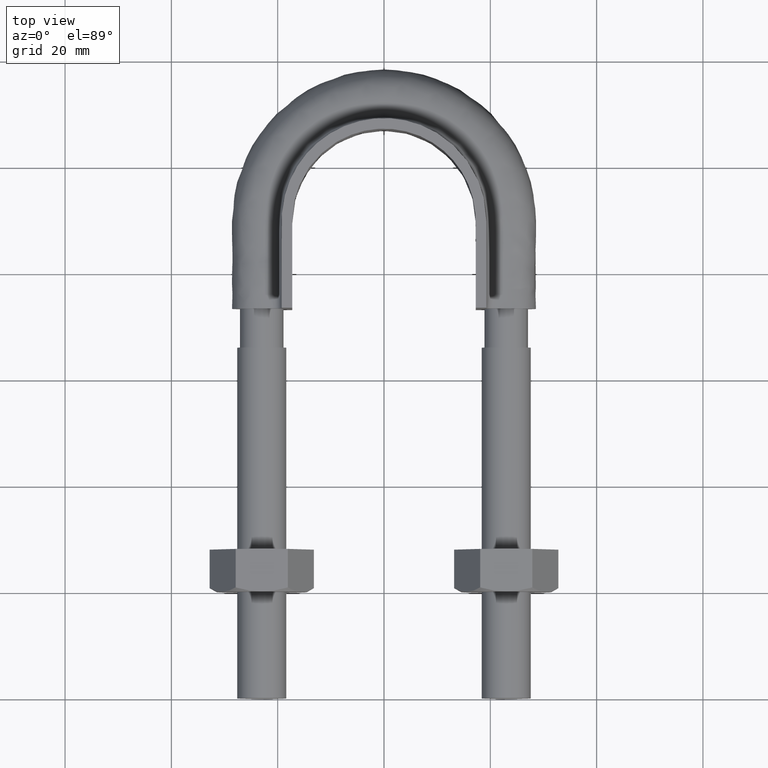
[diagram: clean part render]
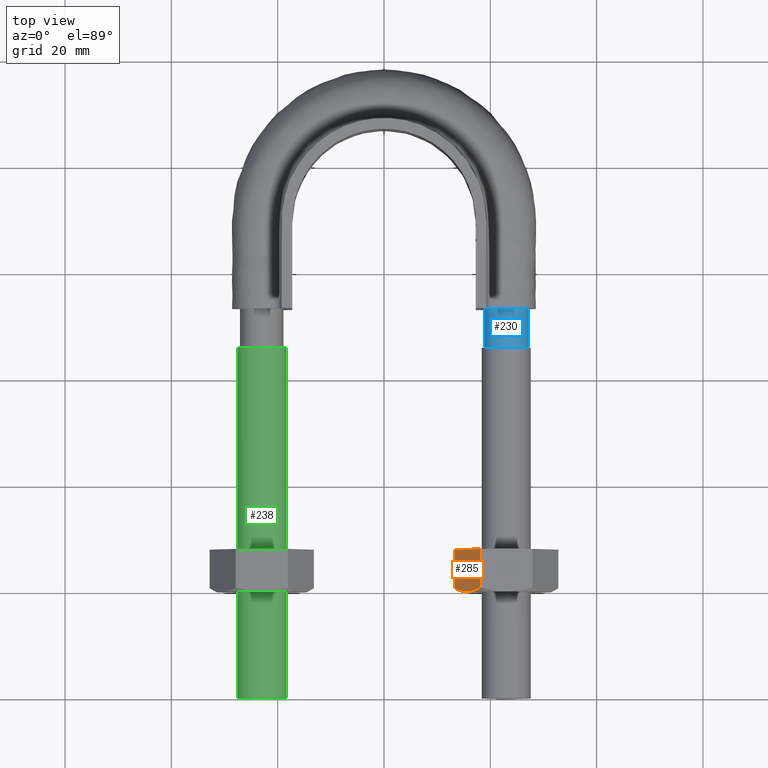
[diagram: same view with three faces highlighted in distinct colors, each labeled with its STEP entity id]
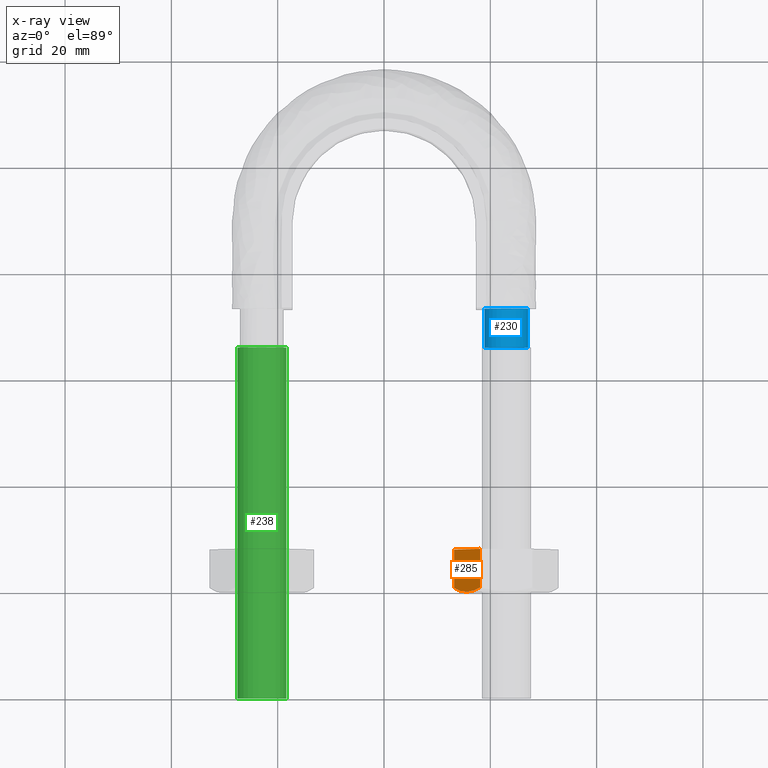
[diagram: x-ray of the same camera — body ghosted, the three highlighted faces saturated]
A machine part, top view with three faces highlighted in distinct colors.
The next image is the same camera in x-ray (body ghosted, the three faces saturated) — at least one of them is partly hidden behind the body in this view.
Their STEP definitions:

[orange] entity #285 — the highlighted planar face has unit normal (0.866, -0, -0.5).
#285 = ADVANCED_FACE( '', ( #444 ), #445, .F. );
#444 = FACE_OUTER_BOUND( '', #1441, .T. );
#445 = PLANE( '', #1442 );
#1441 = EDGE_LOOP( '', ( #1933, #1934, #1935, #1936, #1937 ) );
#1442 = AXIS2_PLACEMENT_3D( '', #1938, #1939, #1940 );
#1933 = ORIENTED_EDGE( '', *, *, #2112, .F. );
#1934 = ORIENTED_EDGE( '', *, *, #2144, .F. );
#1935 = ORIENTED_EDGE( '', *, *, #2121, .F. );
#1936 = ORIENTED_EDGE( '', *, *, #2135, .F. );
#1937 = ORIENTED_EDGE( '', *, *, #2118, .F. );
#1938 = CARTESIAN_POINT( '', ( 13.1850454237764, 28.0000000000000, 9.03086199571801E-015 ) );
#1939 = DIRECTION( '', ( 0.866025403784439, -5.90322481814055E-017, -0.500000000000000 ) );
#1940 = DIRECTION( '', ( 0.000000000000000, -1.00000000000000, 1.18064496362811E-016 ) );
#2112 = EDGE_CURVE( '', #2335, #2337, #2338, .T. );
#2118 = EDGE_CURVE( '', #2337, #2347, #2348, .T. );
#2121 = EDGE_CURVE( '', #2350, #2353, #2354, .F. );
#2135 = EDGE_CURVE( '', #2347, #2350, #2378, .T. );
#2144 = EDGE_CURVE( '', #2353, #2335, #2390, .T. );
#2335 = VERTEX_POINT( '', #2873 );
#2337 = VERTEX_POINT( '', #2875 );
#2338 = B_SPLINE_CURVE_WITH_KNOTS( '', 3, ( #2876, #2877, #2878, #2879, #2880, #2881 ), .UNSPECIFIED., .F., .F., ( 4, 2, 4 ), ( 1.73472347597681E-018, 0.00246745482903607, 0.00493490965807215 ), .UNSPECIFIED. );
#2347 = VERTEX_POINT( '', #2898 );
#2348 = LINE( '', #2899, #2900 );
#2350 = VERTEX_POINT( '', #2902 );
#2353 = VERTEX_POINT( '', #2905 );
#2354 = LINE( '', #2906, #2907 );
#2378 = LINE( '', #2947, #2948 );
#2390 = B_SPLINE_CURVE_WITH_KNOTS( '', 3, ( #2972, #2973, #2974, #2975, #2976, #2977 ), .UNSPECIFIED., .F., .F., ( 4, 2, 4 ), ( 1.73472347597681E-018, 0.00246745482903607, 0.00493490965807214 ), .UNSPECIFIED. );
#2873 = CARTESIAN_POINT( '', ( 15.6387840678323, 20.0000000000000, 4.25000000000001 ) );
#2875 = CARTESIAN_POINT( '', ( 13.2000343881808, 20.7505553499465, 0.0259616479013504 ) );
#2876 = CARTESIAN_POINT( '', ( 15.6387840678323, 20.0000000000000, 4.25000000000001 ) );
#2877 = CARTESIAN_POINT( '', ( 15.2227010927369, 20.0000000000000, 3.52932314697042 ) );
#2878 = CARTESIAN_POINT( '', ( 14.8121309439895, 20.0716504305290, 2.81819478926869 ) );
#2879 = CARTESIAN_POINT( '', ( 14.0000624800009, 20.3328582843706, 1.41165095041601 ) );
#2880 = CARTESIAN_POINT( '', ( 13.5984982144937, 20.5215585493656, 0.716121240053488 ) );
#2881 = CARTESIAN_POINT( '', ( 13.2000343881809, 20.7505553499465, 0.0259616479013800 ) );
#2898 = CARTESIAN_POINT( '', ( 13.2000343881808, 28.0000000000000, 0.0259616479013250 ) );
#2899 = CARTESIAN_POINT( '', ( 13.2000343881808, 28.0000000000000, 0.0259616479013234 ) );
#2900 = VECTOR( '', #3172, 1000.00000000000 );
#2902 = CARTESIAN_POINT( '', ( 18.0775337474838, 28.0000000000000, 8.47403835209866 ) );
#2905 = CARTESIAN_POINT( '', ( 18.0775337474838, 20.7505553499465, 8.47403835209865 ) );
#2906 = CARTESIAN_POINT( '', ( 18.0775337474838, 28.0000000000000, 8.47403835209866 ) );
#2907 = VECTOR( '', #3179, 1000.00000000000 );
#2947 = CARTESIAN_POINT( '', ( 18.0887840678323, 28.0000000000000, 8.49352447854374 ) );
#2948 = VECTOR( '', #3201, 1000.00000000000 );
#2972 = CARTESIAN_POINT( '', ( 18.0775337474838, 20.7505553499465, 8.47403835209865 ) );
#2973 = CARTESIAN_POINT( '', ( 17.6790699211709, 20.5215585493657, 7.78387875994654 ) );
#2974 = CARTESIAN_POINT( '', ( 17.2775056556637, 20.3328582843706, 7.08834904958400 ) );
#2975 = CARTESIAN_POINT( '', ( 16.4654371916751, 20.0716504305290, 5.68180521073132 ) );
#2976 = CARTESIAN_POINT( '', ( 16.0548670429277, 20.0000000000000, 4.97067685302959 ) );
#2977 = CARTESIAN_POINT( '', ( 15.6387840678323, 20.0000000000000, 4.25000000000000 ) );
#3172 = DIRECTION( '', ( 2.44921270764476E-016, 1.00000000000000, 3.06151588455594E-016 ) );
#3179 = DIRECTION( '', ( 2.44921270764476E-016, 1.00000000000000, 3.06151588455594E-016 ) );
#3201 = DIRECTION( '', ( 0.500000000000000, -3.87595688393741E-016, 0.866025403784439 ) );

[blue] entity #230 — the highlighted cylindrical surface (bore or boss wall) has radius 4.1 mm, axis along (0, 1, 0).
#230 = ADVANCED_FACE( '', ( #323, #324 ), #325, .T. );
#323 = FACE_OUTER_BOUND( '', #1320, .T. );
#324 = FACE_OUTER_BOUND( '', #1321, .T. );
#325 = CYLINDRICAL_SURFACE( '', #1322, 4.10000000000000 );
#1320 = EDGE_LOOP( '', ( #1558, #1559, #1560, #1561, #1562, #1563, #1564 ) );
#1321 = EDGE_LOOP( '', ( #1565 ) );
#1322 = AXIS2_PLACEMENT_3D( '', #1566, #1567, #1568 );
#1558 = ORIENTED_EDGE( '', *, *, #2039, .T. );
#1559 = ORIENTED_EDGE( '', *, *, #2040, .T. );
#1560 = ORIENTED_EDGE( '', *, *, #2041, .T. );
#1561 = ORIENTED_EDGE( '', *, *, #2042, .T. );
#1562 = ORIENTED_EDGE( '', *, *, #2043, .T. );
#1563 = ORIENTED_EDGE( '', *, *, #2044, .T. );
#1564 = ORIENTED_EDGE( '', *, *, #2045, .T. );
#1565 = ORIENTED_EDGE( '', *, *, #2046, .T. );
#1566 = CARTESIAN_POINT( '', ( 23.0000000000000, 73.3000000000000, 9.99584936307515E-015 ) );
#1567 = DIRECTION( '', ( 2.44921270764475E-016, 1.00000000000000, 3.06151588455594E-016 ) );
#1568 = DIRECTION( '', ( 1.00000000000000, -2.44921270764475E-016, -3.74915180455534E-032 ) );
#2039 = EDGE_CURVE( '', #2207, #2205, #2216, .T. );
#2040 = EDGE_CURVE( '', #2205, #2203, #2217, .T. );
#2041 = EDGE_CURVE( '', #2203, #2202, #2218, .T. );
#2042 = EDGE_CURVE( '', #2202, #2213, #2219, .T. );
#2043 = EDGE_CURVE( '', #2213, #2211, #2220, .T. );
#2044 = EDGE_CURVE( '', #2211, #2209, #2221, .T. );
#2045 = EDGE_CURVE( '', #2209, #2207, #2222, .T. );
#2046 = EDGE_CURVE( '', #2223, #2223, #2224, .T. );
#2202 = VERTEX_POINT( '', #2621 );
#2203 = VERTEX_POINT( '', #2622 );
#2205 = VERTEX_POINT( '', #2627 );
#2207 = VERTEX_POINT( '', #2632 );
#2209 = VERTEX_POINT( '', #2637 );
#2211 = VERTEX_POINT( '', #2642 );
#2213 = VERTEX_POINT( '', #2647 );
#2216 = CIRCLE( '', #2656, 4.10000000000000 );
#2217 = CIRCLE( '', #2657, 4.10000000000000 );
#2218 = CIRCLE( '', #2658, 4.10000000000000 );
#2219 = CIRCLE( '', #2659, 4.10000000000000 );
#2220 = CIRCLE( '', #2660, 4.10000000000000 );
#2221 = CIRCLE( '', #2661, 4.10000000000000 );
#2222 = CIRCLE( '', #2662, 4.10000000000000 );
#2223 = VERTEX_POINT( '', #2663 );
#2224 = CIRCLE( '', #2664, 4.10000000000000 );
#2621 = CARTESIAN_POINT( '', ( 18.9000000000000, 73.3000000000000, -2.81032069951698E-013 ) );
#2622 = CARTESIAN_POINT( '', ( 20.4436918123791, 73.3000000000000, 3.20550907811885 ) );
#2627 = CARTESIAN_POINT( '', ( 23.9123358292210, 73.3000000000000, 3.99720443994546 ) );
#2632 = CARTESIAN_POINT( '', ( 26.6939723583999, 73.3000000000000, 1.77892333038198 ) );
#2637 = CARTESIAN_POINT( '', ( 26.6939723583998, 73.3000000000000, -1.77892333038220 ) );
#2642 = CARTESIAN_POINT( '', ( 23.9123358292212, 73.3000000000000, -3.99720443994541 ) );
#2647 = CARTESIAN_POINT( '', ( 20.4436918123817, 73.3000000000000, -3.20550907812092 ) );
#2656 = AXIS2_PLACEMENT_3D( '', #3031, #3032, #3033 );
#2657 = AXIS2_PLACEMENT_3D( '', #3034, #3035, #3036 );
#2658 = AXIS2_PLACEMENT_3D( '', #3037, #3038, #3039 );
#2659 = AXIS2_PLACEMENT_3D( '', #3040, #3041, #3042 );
#2660 = AXIS2_PLACEMENT_3D( '', #3043, #3044, #3045 );
#2661 = AXIS2_PLACEMENT_3D( '', #3046, #3047, #3048 );
#2662 = AXIS2_PLACEMENT_3D( '', #3049, #3050, #3051 );
#2663 = CARTESIAN_POINT( '', ( 23.0000000000000, 66.0000000000000, 4.10000000000001 ) );
#2664 = AXIS2_PLACEMENT_3D( '', #3052, #3053, #3054 );
#3031 = CARTESIAN_POINT( '', ( 23.0000000000000, 73.3000000000000, 9.99584936307515E-015 ) );
#3032 = DIRECTION( '', ( -2.44921270764475E-016, -1.00000000000000, -3.06151588455594E-016 ) );
#3033 = DIRECTION( '', ( 1.00000000000000, -2.44921270764475E-016, -4.04273868632169E-032 ) );
#3034 = CARTESIAN_POINT( '', ( 23.0000000000000, 73.3000000000000, 9.99584936307515E-015 ) );
#3035 = DIRECTION( '', ( -2.44921270764475E-016, -1.00000000000000, -3.06151588455594E-016 ) );
#3036 = DIRECTION( '', ( 1.00000000000000, -2.44921270764475E-016, -4.04273868632169E-032 ) );
#3037 = CARTESIAN_POINT( '', ( 23.0000000000000, 73.3000000000000, 9.99584936307515E-015 ) );
#3038 = DIRECTION( '', ( -2.44921270764475E-016, -1.00000000000000, -3.06151588455594E-016 ) );
#3039 = DIRECTION( '', ( 1.00000000000000, -2.44921270764475E-016, -4.04273868632169E-032 ) );
#3040 = CARTESIAN_POINT( '', ( 23.0000000000000, 73.3000000000000, 9.99584936307515E-015 ) );
#3041 = DIRECTION( '', ( -2.44921270764475E-016, -1.00000000000000, -3.06151588455594E-016 ) );
#3042 = DIRECTION( '', ( 1.00000000000000, -2.44921270764475E-016, -4.04273868632169E-032 ) );
#3043 = CARTESIAN_POINT( '', ( 23.0000000000000, 73.3000000000000, 9.99584936307515E-015 ) );
#3044 = DIRECTION( '', ( -2.44921270764475E-016, -1.00000000000000, -3.06151588455594E-016 ) );
#3045 = DIRECTION( '', ( 1.00000000000000, -2.44921270764475E-016, -4.04273868632169E-032 ) );
#3046 = CARTESIAN_POINT( '', ( 23.0000000000000, 73.3000000000000, 9.99584936307515E-015 ) );
#3047 = DIRECTION( '', ( -2.44921270764475E-016, -1.00000000000000, -3.06151588455594E-016 ) );
#3048 = DIRECTION( '', ( 1.00000000000000, -2.44921270764475E-016, -4.04273868632169E-032 ) );
#3049 = CARTESIAN_POINT( '', ( 23.0000000000000, 73.3000000000000, 9.99584936307515E-015 ) );
#3050 = DIRECTION( '', ( -2.44921270764475E-016, -1.00000000000000, -3.06151588455594E-016 ) );
#3051 = DIRECTION( '', ( 1.00000000000000, -2.44921270764475E-016, -4.04273868632169E-032 ) );
#3052 = CARTESIAN_POINT( '', ( 23.0000000000000, 66.0000000000000, 7.76094276734931E-015 ) );
#3053 = DIRECTION( '', ( 2.44921270764475E-016, 1.00000000000000, 3.06151588455594E-016 ) );
#3054 = DIRECTION( '', ( -3.74915180455534E-032, -3.06151588455594E-016, 1.00000000000000 ) );

[green] entity #238 — the highlighted cylindrical surface (bore or boss wall) has radius 4.6 mm, axis along (0, 1, 0).
#238 = ADVANCED_FACE( '', ( #342, #343 ), #344, .T. );
#342 = FACE_OUTER_BOUND( '', #1339, .T. );
#343 = FACE_OUTER_BOUND( '', #1340, .T. );
#344 = CYLINDRICAL_SURFACE( '', #1341, 4.60000000000000 );
#1339 = EDGE_LOOP( '', ( #1603 ) );
#1340 = EDGE_LOOP( '', ( #1604 ) );
#1341 = AXIS2_PLACEMENT_3D( '', #1605, #1606, #1607 );
#1603 = ORIENTED_EDGE( '', *, *, #2049, .T. );
#1604 = ORIENTED_EDGE( '', *, *, #2050, .F. );
#1605 = CARTESIAN_POINT( '', ( -23.0000000000000, 66.0000000000000, 2.03131578940287E-014 ) );
#1606 = DIRECTION( '', ( 2.44921270764475E-016, 1.00000000000000, 3.06151588455594E-016 ) );
#1607 = DIRECTION( '', ( 1.00000000000000, -2.44921270764475E-016, -3.74915180455534E-032 ) );
#2049 = EDGE_CURVE( '', #2229, #2229, #2230, .T. );
#2050 = EDGE_CURVE( '', #2231, #2231, #2232, .T. );
#2229 = VERTEX_POINT( '', #2669 );
#2230 = CIRCLE( '', #2670, 4.60000000000000 );
#2231 = VERTEX_POINT( '', #2671 );
#2232 = CIRCLE( '', #2672, 4.60000000000000 );
#2669 = CARTESIAN_POINT( '', ( -18.4000000000000, 66.0000000000000, 2.03131578940287E-014 ) );
#2670 = AXIS2_PLACEMENT_3D( '', #3061, #3062, #3063 );
#2671 = CARTESIAN_POINT( '', ( -18.4000000000000, 4.50655138206635E-015, 1.07153055959459E-016 ) );
#2672 = AXIS2_PLACEMENT_3D( '', #3064, #3065, #3066 );
#3061 = CARTESIAN_POINT( '', ( -23.0000000000000, 66.0000000000000, 2.03131578940287E-014 ) );
#3062 = DIRECTION( '', ( -2.44921270764475E-016, -1.00000000000000, -3.06151588455594E-016 ) );
#3063 = DIRECTION( '', ( 1.00000000000000, -2.44921270764475E-016, -3.48747654037229E-032 ) );
#3064 = CARTESIAN_POINT( '', ( -23.0000000000000, 5.63318922758293E-015, 1.07153055959459E-016 ) );
#3065 = DIRECTION( '', ( -2.44921270764475E-016, -1.00000000000000, -3.06151588455594E-016 ) );
#3066 = DIRECTION( '', ( 1.00000000000000, -2.44921270764475E-016, -3.48747654037229E-032 ) );